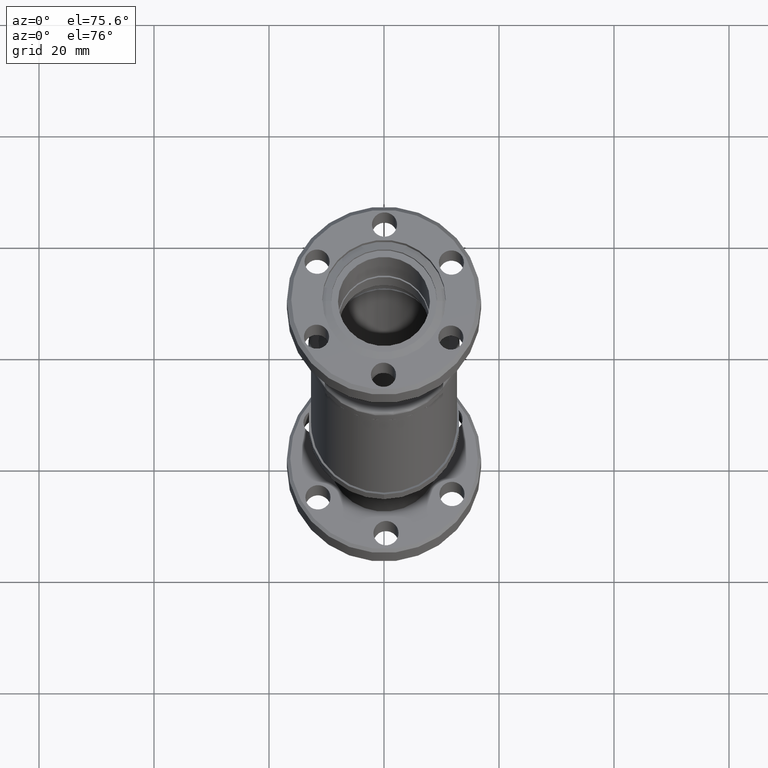
[diagram: clean part render]
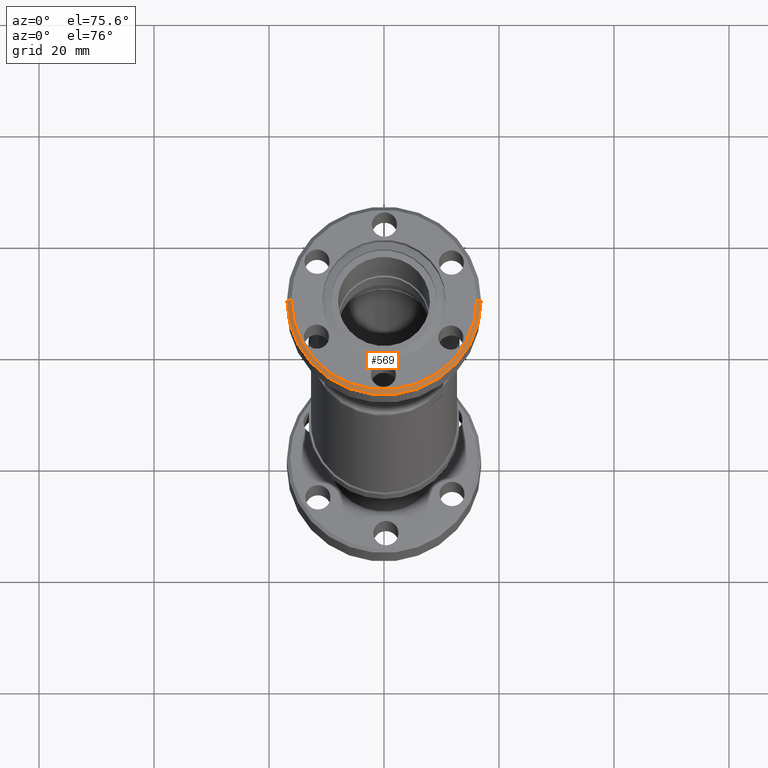
[diagram: same view with one face highlighted and labeled with its STEP entity id]
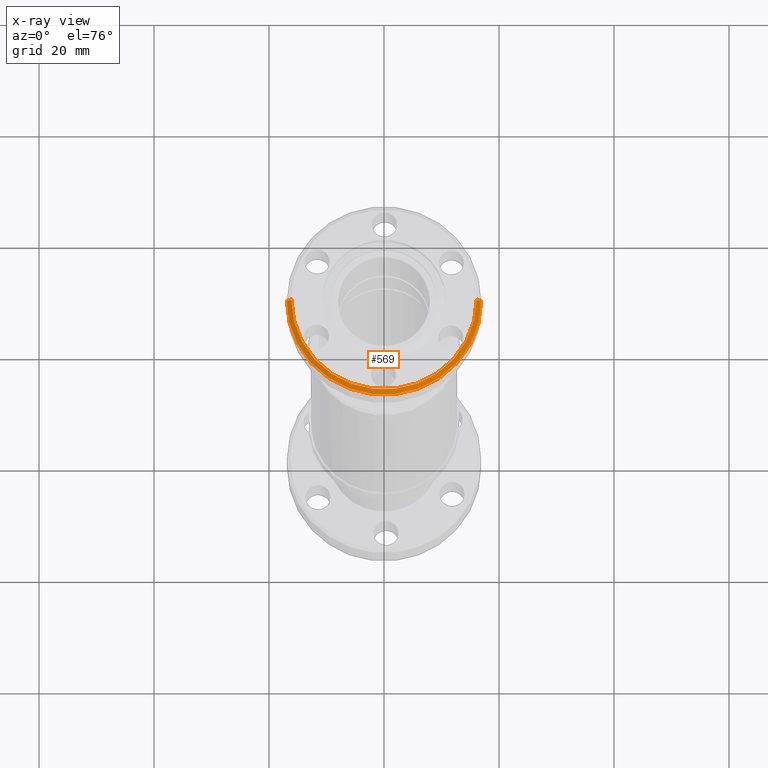
[diagram: x-ray of the same camera — body ghosted, the highlighted face saturated]
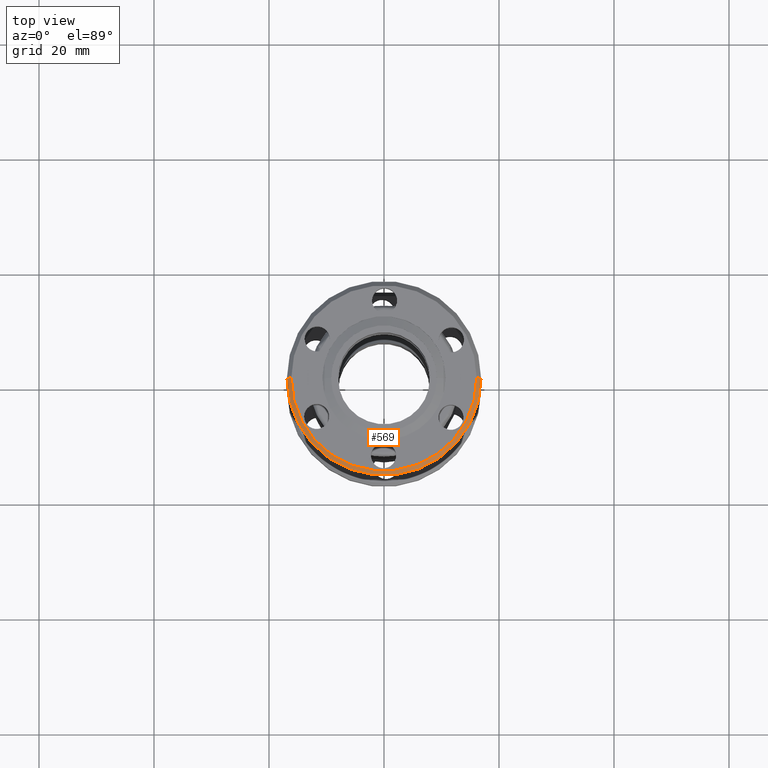
[diagram: same view with one face highlighted and labeled with its STEP entity id]
A machine part, auxiliary view. The second image highlights one B-rep face of the part: STEP entity #569.
The next image is the same camera in x-ray: the body ghosted, the highlighted face saturated — about 0% of this face is hidden behind the body in this view.
A second angle (top view) of the same face is appended — the face is thin or edge-on in the first view.
In plain terms, the highlighted conical surface has half-angle 45 deg.
Its self-contained STEP definition (entity closure, byte-faithful):
#258 = FACE_OUTER_BOUND ( 'NONE', #3146, .T. ) ;
#569 = ADVANCED_FACE ( 'NONE', ( #258 ), #3901, .T. ) ;
#741 = AXIS2_PLACEMENT_3D ( 'NONE', #1522, #1518, #1517 ) ;
#742 = AXIS2_PLACEMENT_3D ( 'NONE', #1542, #1541, #1535 ) ;
#955 = CARTESIAN_POINT ( 'NONE',  ( -0.6350000000000005600, 1.209343724700740500E-016, 3.476970110498948300 ) ) ;
#1062 = CARTESIAN_POINT ( 'NONE',  ( 0.6349999999999990100, 2.004953581175988800E-016, 3.476970110498948300 ) ) ;
#1124 = CARTESIAN_POINT ( 'NONE',  ( -0.6650000000000005900, 1.208522598759678900E-016, 3.446970110498948100 ) ) ;
#1204 = CARTESIAN_POINT ( 'NONE',  ( 0.6649999999999985900, 2.022912720192668300E-016, 3.446970110498948100 ) ) ;
#1517 = DIRECTION ( 'NONE',  ( -1.000000000000000000, 0.0000000000000000000, 0.0000000000000000000 ) ) ;
#1518 = DIRECTION ( 'NONE',  ( 4.107950912085281900E-016, -2.737086470204717700E-018, -1.000000000000000000 ) ) ;
#1522 = CARTESIAN_POINT ( 'NONE',  ( -8.318782508355349800E-016, 1.209343724700740500E-016, 3.476970110498948300 ) ) ;
#1535 = DIRECTION ( 'NONE',  ( 1.000000000000000000, 0.0000000000000000000, 0.0000000000000000000 ) ) ;
#1541 = DIRECTION ( 'NONE',  ( 2.850142584870308900E-016, -1.461969761368827600E-016, -1.000000000000000000 ) ) ;
#1542 = CARTESIAN_POINT ( 'NONE',  ( -8.719326058411548600E-016, 1.207875250177715900E-016, 3.446970110498948100 ) ) ;
#1709 = EDGE_CURVE ( 'NONE', #3281, #3906, #3677, .T. ) ;
#1711 = EDGE_CURVE ( 'NONE', #3338, #3247, #3672, .T. ) ;
#1786 = EDGE_CURVE ( 'NONE', #3906, #3247, #3559, .T. ) ;
#1787 = EDGE_CURVE ( 'NONE', #3281, #3338, #3558, .T. ) ;
#3146 = EDGE_LOOP ( 'NONE', ( #4208, #4124, #4216, #4116 ) ) ;
#3247 = VERTEX_POINT ( 'NONE', #1124 ) ;
#3281 = VERTEX_POINT ( 'NONE', #1062 ) ;
#3338 = VERTEX_POINT ( 'NONE', #955 ) ;
#3558 = CIRCLE ( 'NONE', #741, 0.6349999999999997900 ) ;
#3559 = CIRCLE ( 'NONE', #742, 0.6650000000000000400 ) ;
#3669 = VECTOR ( 'NONE', #4712, 39.37007874015748100 ) ;
#3672 = LINE ( 'NONE', #4714, #3669 ) ;
#3673 = VECTOR ( 'NONE', #4725, 39.37007874015748100 ) ;
#3677 = LINE ( 'NONE', #4724, #3673 ) ;
#3901 = CONICAL_SURFACE ( 'NONE', #4325, 0.6650000000000001500, 0.7853981633974415100 ) ;
#3906 = VERTEX_POINT ( 'NONE', #1204 ) ;
#4116 = ORIENTED_EDGE ( 'NONE', *, *, #1786, .F. ) ;
#4124 = ORIENTED_EDGE ( 'NONE', *, *, #1787, .T. ) ;
#4208 = ORIENTED_EDGE ( 'NONE', *, *, #1709, .F. ) ;
#4216 = ORIENTED_EDGE ( 'NONE', *, *, #1711, .T. ) ;
#4325 = AXIS2_PLACEMENT_3D ( 'NONE', #4892, #4883, #4893 ) ;
#4712 = DIRECTION ( 'NONE',  ( -0.7071067811865423500, -1.935412403775720300E-018, -0.7071067811865526800 ) ) ;
#4714 = CARTESIAN_POINT ( 'NONE',  ( -0.6650000000000009200, 1.208522598759678900E-016, 3.446970110498947600 ) ) ;
#4724 = CARTESIAN_POINT ( 'NONE',  ( 0.6649999999999993700, 2.022912720192669300E-016, 3.446970110498947600 ) ) ;
#4725 = DIRECTION ( 'NONE',  ( 0.7071067811865430200, 8.466019321977301600E-017, -0.7071067811865520100 ) ) ;
#4883 = DIRECTION ( 'NONE',  ( 4.107950912085281900E-016, -2.737086470204717700E-018, -1.000000000000000000 ) ) ;
#4892 = CARTESIAN_POINT ( 'NONE',  ( -8.195543980992788700E-016, 1.208522598759678900E-016, 3.446970110498947600 ) ) ;
#4893 = DIRECTION ( 'NONE',  ( -1.000000000000000000, 0.0000000000000000000, 0.0000000000000000000 ) ) ;